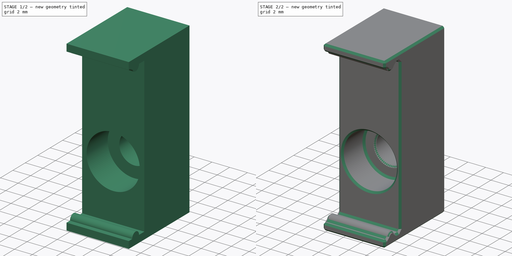
[diagram: build sequence overview — one tinted view per stage of 2, left to right]
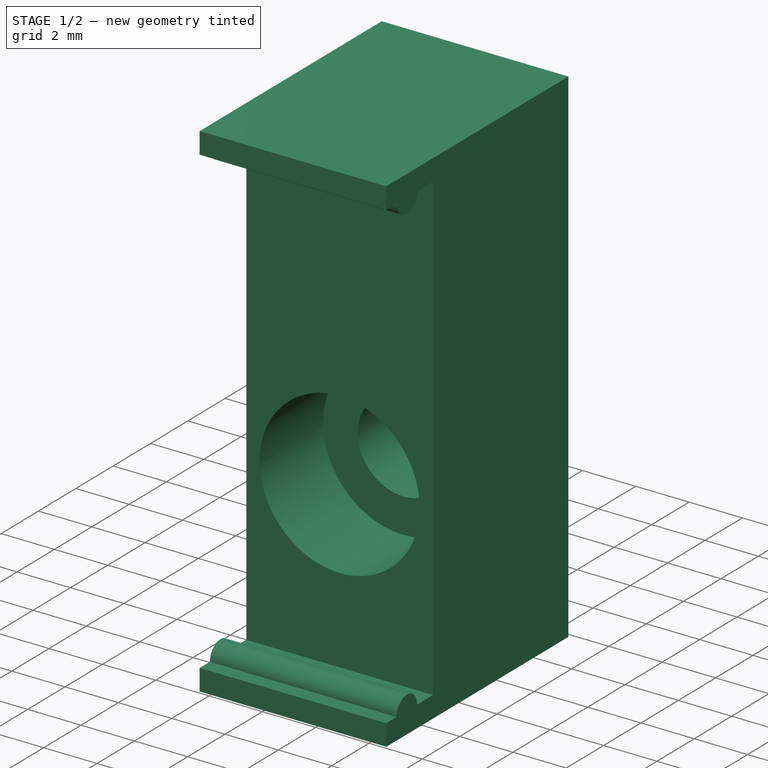
[diagram: stage 1 of 2 — iso view after this stage's code; geometry added in this stage tinted green]
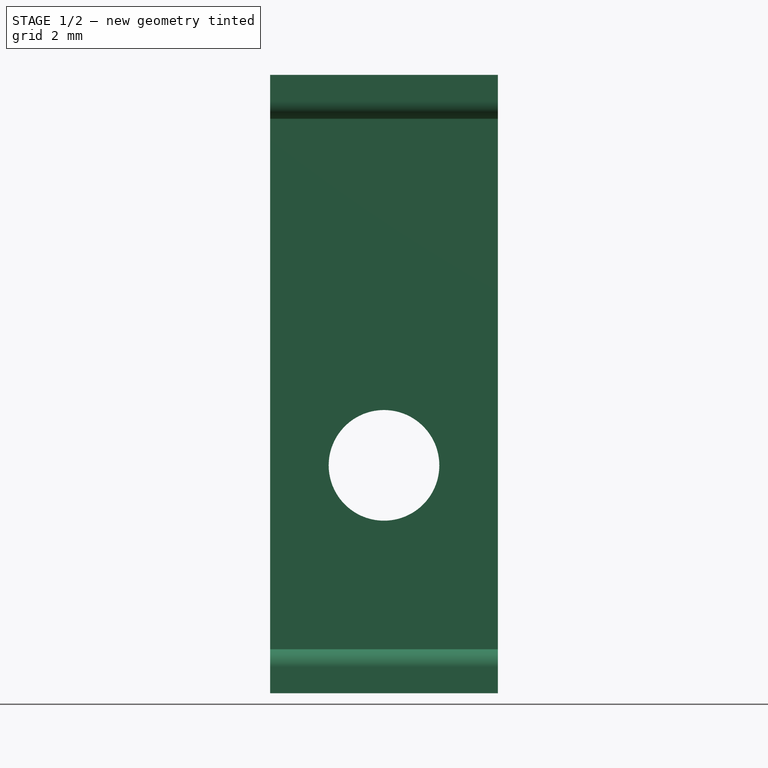
[diagram: stage 1 of 2 — front view after this stage's code; geometry added in this stage tinted green]
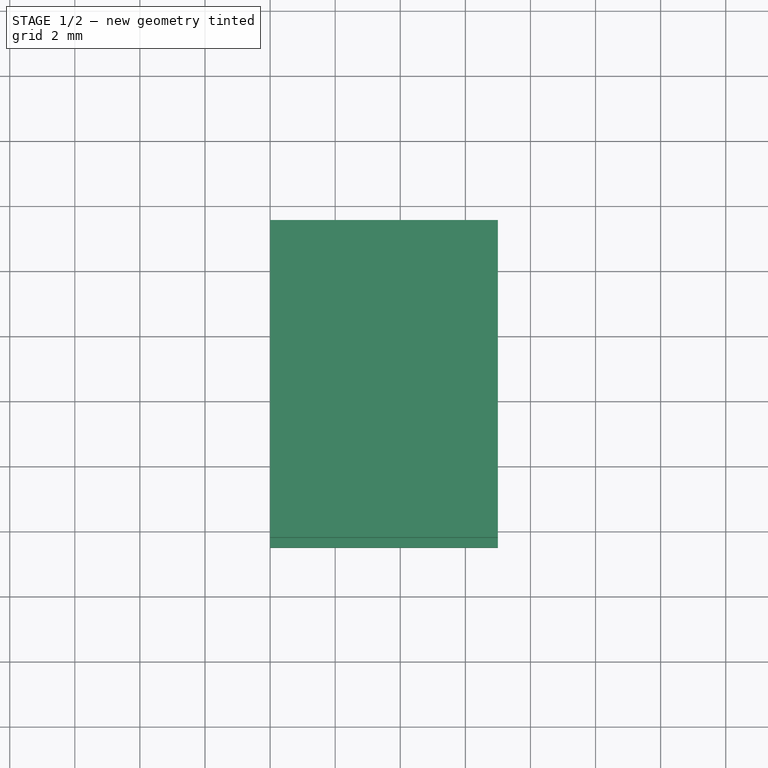
[diagram: stage 1 of 2 — top view after this stage's code; geometry added in this stage tinted green]
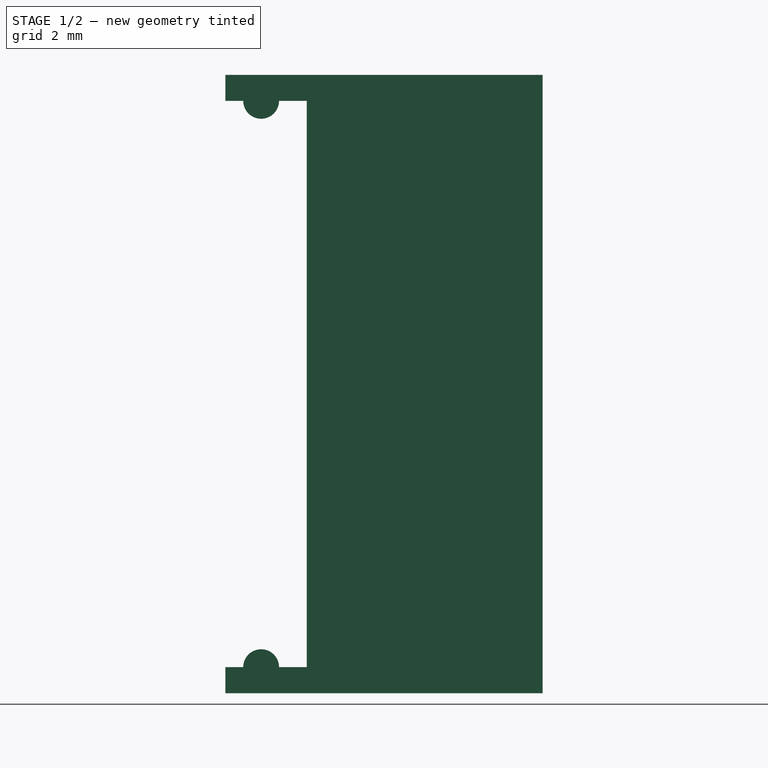
[diagram: stage 1 of 2 — right view after this stage's code; geometry added in this stage tinted green]
FCSTD DOCUMENT  (FreeCAD 0.21R33771 (Git))
Label: tradrack-led-profile-holder
License: All rights reserved
LicenseURL: http://en.wikipedia.org/wiki/All_rights_reserved
objects: Sketcher::SketchObject×2, PartDesign::Pad×1, PartDesign::Hole×1, PartDesign::Chamfer×1, PartDesign::Body×1
note: 9 computed .brp shape members not serialized (recipe doc carries the construction recipe); baked Part::Feature solids carry a one-line shape summary decoded from their .brp

FEATURE [Sketcher::SketchObject] Sketch
  FullyConstrained = true
  MapMode = 5
  Placement = pos=(0,0,0) rot=(0.57735,0.57735,0.57735;2.0944rad)
  Support = -> [YZ_Plane]
  sketch-geometry (18):
    g0: LineSegment StartX=0 StartY=17.4 StartZ=0 EndX=0 EndY=0 EndZ=0
    g1: LineSegment StartX=0 StartY=17.4 StartZ=0 EndX=-2.5 EndY=17.4 EndZ=0
    g2: LineSegment StartX=0 StartY=0 StartZ=0 EndX=-2.5 EndY=0 EndZ=0
    g3: LineSegment StartX=-0.85 StartY=17.4 StartZ=0 EndX=-0.85 EndY=0 EndZ=0
    g4: LineSegment StartX=-1.95 StartY=17.4 StartZ=0 EndX=-1.95 EndY=0 EndZ=0
    g5: LineSegment StartX=-2.5 StartY=0 StartZ=0 EndX=-2.5 EndY=-0.8 EndZ=0
    g6: LineSegment StartX=-2.5 StartY=18.2 StartZ=0 EndX=-2.5 EndY=17.4 EndZ=0
    g7: LineSegment StartX=-2.5 StartY=17.4 StartZ=0 EndX=-1.95 EndY=17.4 EndZ=0
    g8: ArcOfCircle CenterX=-1.4 CenterY=17.4 CenterZ=0 NormalX=0 NormalY=0 NormalZ=1 AngleXU=0 Radius=0.55 StartAngle=3.14159 EndAngle=6.28319
    g9: LineSegment StartX=-0.85 StartY=17.4 StartZ=0 EndX=0 EndY=17.4 EndZ=0
    g10: LineSegment StartX=0 StartY=17.4 StartZ=0 EndX=0 EndY=0 EndZ=0
    g11: LineSegment StartX=0 StartY=0 StartZ=0 EndX=-0.85 EndY=1e-16 EndZ=0
    g12: ArcOfCircle CenterX=-1.4 CenterY=1e-16 CenterZ=0 NormalX=0 NormalY=0 NormalZ=1 AngleXU=0 Radius=0.55 StartAngle=0 EndAngle=3.14159
    g13: LineSegment StartX=-1.95 StartY=0 StartZ=0 EndX=-2.5 EndY=0 EndZ=0
    g14: LineSegment StartX=-2.5 StartY=0 StartZ=0 EndX=-8.95 EndY=0 EndZ=0
    g15: LineSegment StartX=-2.5 StartY=18.2 StartZ=0 EndX=7.25 EndY=18.2 EndZ=0
    g16: LineSegment StartX=7.25 StartY=18.2 StartZ=0 EndX=7.25 EndY=-0.8 EndZ=0
    g17: LineSegment StartX=-2.5 StartY=-0.8 StartZ=0 EndX=7.25 EndY=-0.8 EndZ=0
  constraints (48):
    c: PointOnObject(g0,g-2)
    c: Coincident(g0,g-1)
    c: DistanceY(g0,g0) = 17.4
    c: Coincident(g1,g0)
    c: Horizontal(g1)
    c: Coincident(g2,g0)
    c: PointOnObject(g2,g-1)
    c: Vertical(g1,g2)
    c: PointOnObject(g3,g1)
    c: PointOnObject(g3,g2)
    c: Vertical(g3)
    c: PointOnObject(g4,g1)
    c: PointOnObject(g4,g2)
    c: Vertical(g4)
    c: DistanceX(g3,g0) = 0.85
    c: DistanceX(g4,g3) = 1.1
    c: Coincident(g2,g5)
    c: Vertical(g5)
    c: Coincident(g6,g1)
    c: Coincident(g6,g7)
    c: Coincident(g7,g4)
    c: Perpendicular(g7,g8) = 4.71239
    c: Coincident(g8,g3)
    c: Coincident(g8,g9)
    c: Coincident(g9,g0)
    c: Coincident(g9,g10)
    c: Coincident(g10,g0)
    c: Coincident(g10,g11)
    c: Coincident(g11,g3)
    c: Perpendicular(g11,g12) = 4.71239
    c: Coincident(g12,g4)
    c: Coincident(g12,g13)
    c: Coincident(g13,g5)
    c: Vertical(g6)
    c: DistanceY(g6,g6) = 0.8
    c: Equal(g5,g6)
    c: Coincident(g14,g5)
    c: PointOnObject(g14,g-1)
    c: DistanceX(g14,g12) = 7
    c: Coincident(g15,g6)
    c: Horizontal(g15)
    c: Vertical(g16)
    c: Coincident(g17,g5)
    c: Horizontal(g17)
    c: Coincident(g16,g17)
    c: Coincident(g15,g16)
    c: DistanceX(g9,g15) = 7.25
    c: DistanceX(g6,g9) = 2.5
FEATURE [PartDesign::Pad] Pad
  Direction = (1,-2e-16,3e-16)
  Length = 7
  Length2 = 10
  Placement = pos=(0,0,0) rot=(1,1,1;2.0944rad)
  Profile = -> Sketch
  ReferenceAxis = -> Sketch [N_Axis]
  Type = 0
FEATURE [Sketcher::SketchObject] Sketch001
  ExternalGeometry = -> [Pad]
  FullyConstrained = true
  MapMode = 5
  Placement = pos=(0,0,0) rot=(-0.57735,-0.57735,0.57735;4.18879rad)
  Support = -> [Pad]
  sketch-geometry (1):
    g0: Circle CenterX=-6.2 CenterY=3.5 CenterZ=0 NormalX=0 NormalY=0 NormalZ=1 AngleXU=0 Radius=1.5
  constraints (3):
    c: DistanceX(g-3,g0) = 12
    c: DistanceY(g-3,g0) = 3.5
    c: Diameter(g0) = 3
FEATURE [PartDesign::Hole] Hole
  BaseFeature = -> Pad
  CustomThreadClearance = 0
  Depth = 46.1305
  DepthType = 1
  Diameter = 3.4
  DrillForDepth = false
  DrillPoint = 1
  DrillPointAngle = 118
  HoleCutCountersinkAngle = 90
  HoleCutCustomValues = false
  HoleCutDepth = 3.4
  HoleCutDiameter = 6
  HoleCutType = 9
  ModelThread = false
  Placement = pos=(0,0,0) rot=(1,1,1;2.0944rad)
  Profile = -> Sketch001
  Tapered = false
  TaperedAngle = 90
  ThreadClass = 0
  ThreadDepth = 46.1305
  ThreadDepthType = 0
  ThreadDirection = 0
  ThreadFit = 0
  ThreadSize = 9
  ThreadType = 1
  Threaded = false
  UseCustomThreadClearance = false
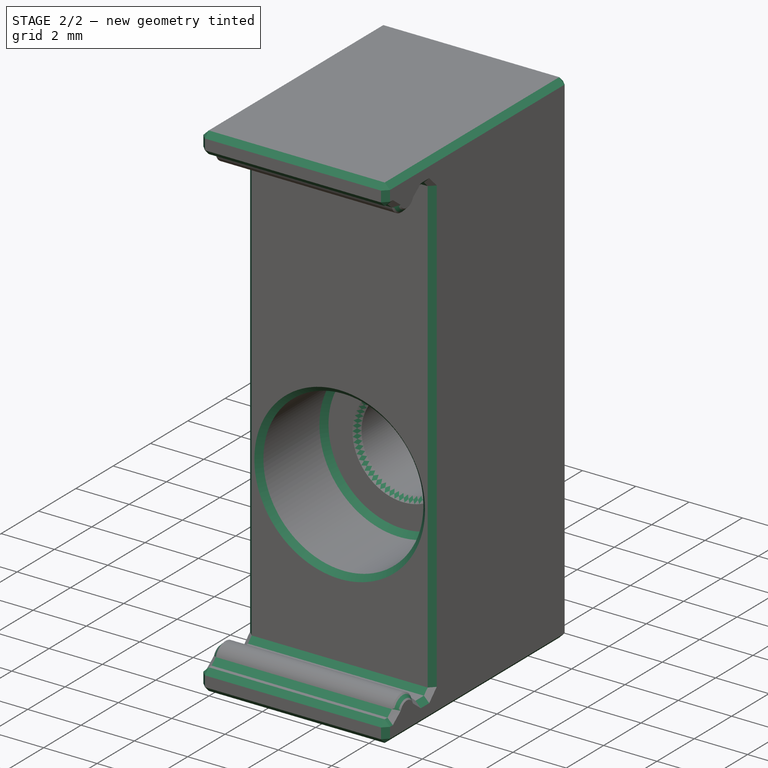
[diagram: stage 2 of 2 — iso view after this stage's code; geometry added in this stage tinted green]
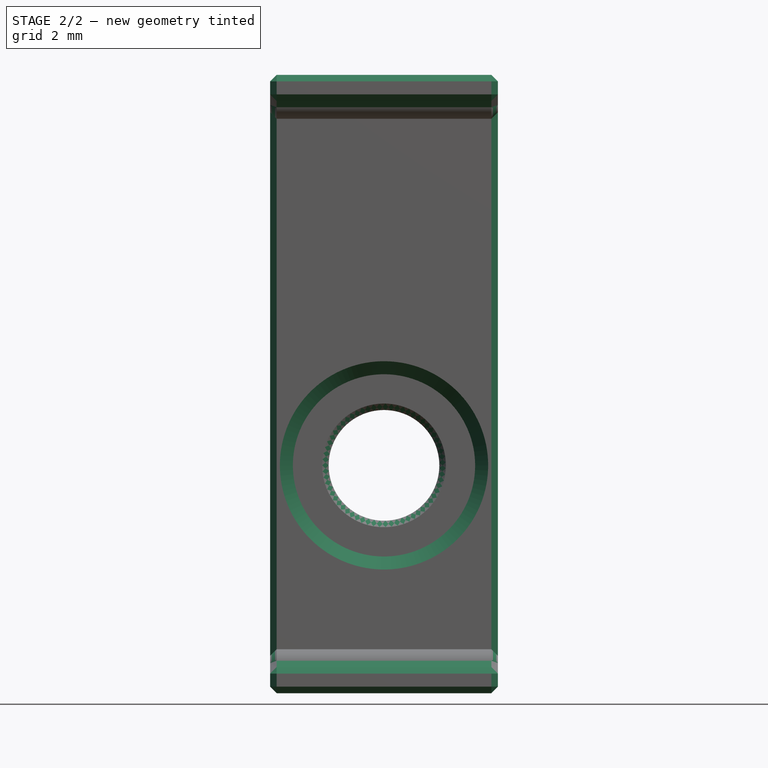
[diagram: stage 2 of 2 — front view after this stage's code; geometry added in this stage tinted green]
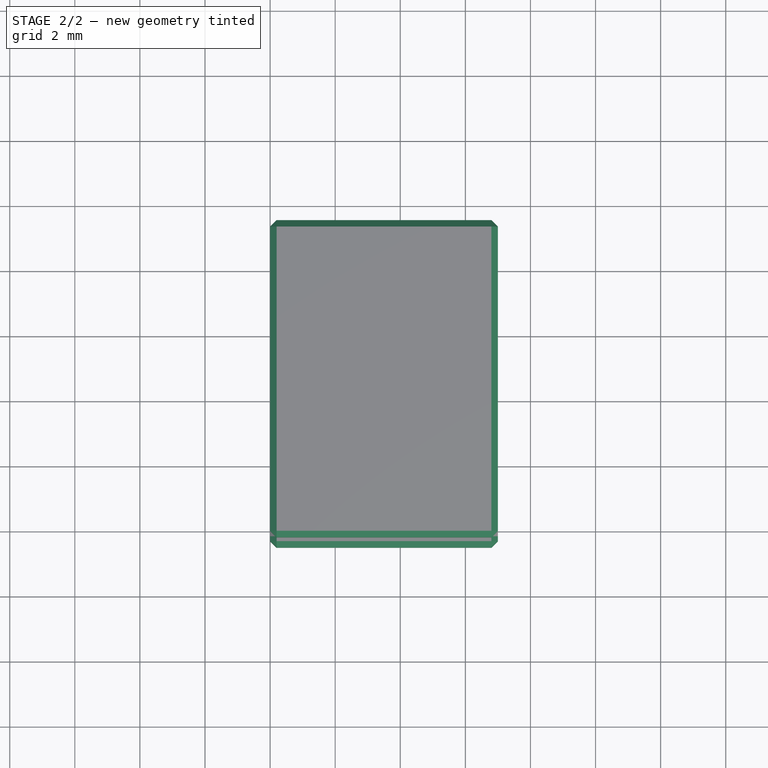
[diagram: stage 2 of 2 — top view after this stage's code; geometry added in this stage tinted green]
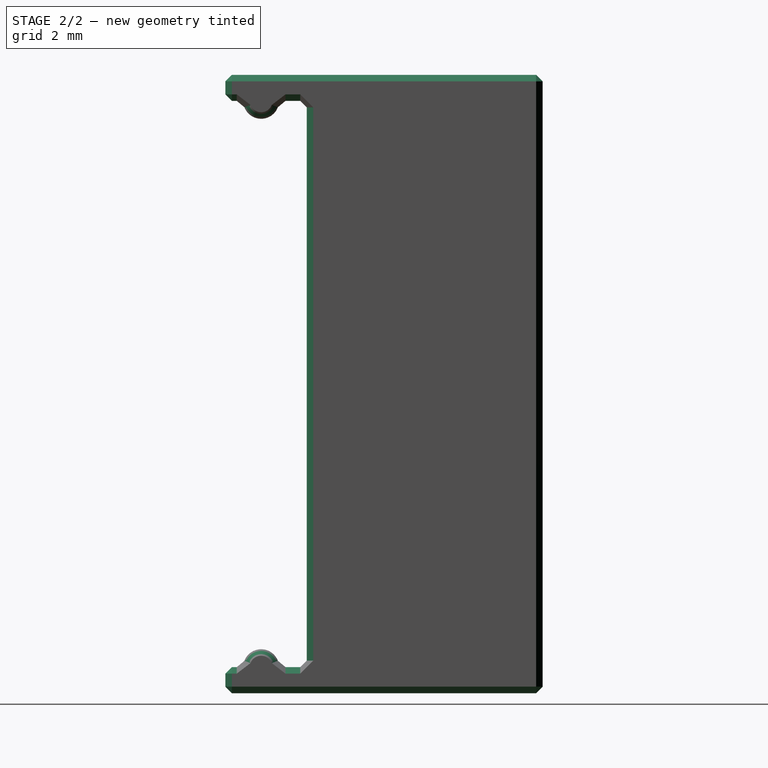
[diagram: stage 2 of 2 — right view after this stage's code; geometry added in this stage tinted green]
FEATURE [PartDesign::Chamfer] Chamfer
  Angle = 45
  Base = -> Hole
  BaseFeature = -> Hole
  ChamferType = 0
  FlipDirection = false
  Placement = pos=(0,0,0) rot=(1,1,1;2.0944rad)
  Size = 0.2
  Size2 = 1
  SupportTransform = false
  UseAllEdges = true
FEATURE [PartDesign::Body] Body  label="body"
  Group = -> [Sketch,Pad,Sketch001,Hole,Chamfer]
  Origin = -> Origin
  Tip = -> Chamfer
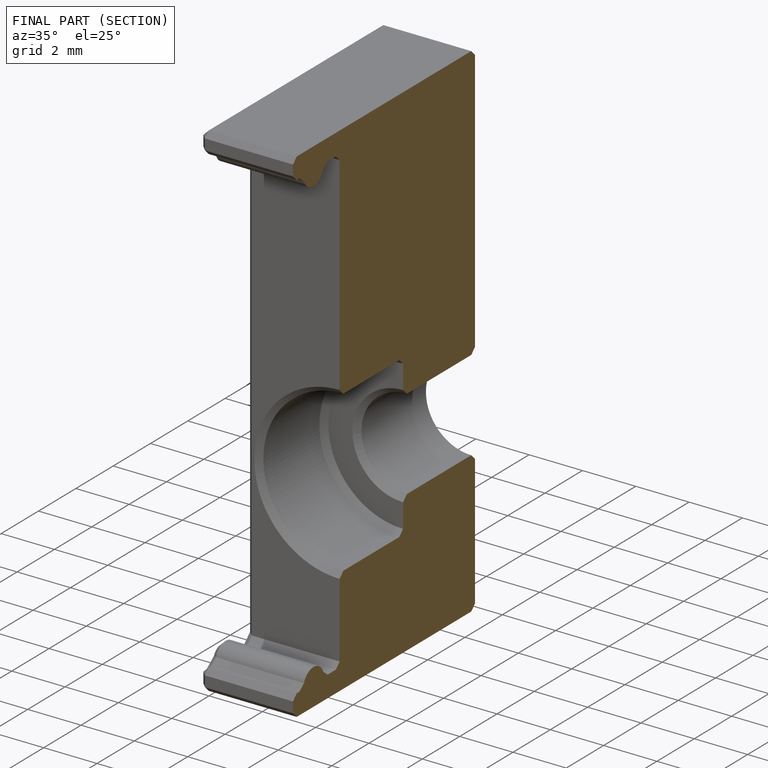
[diagram: finished part — half-section view (interior)]
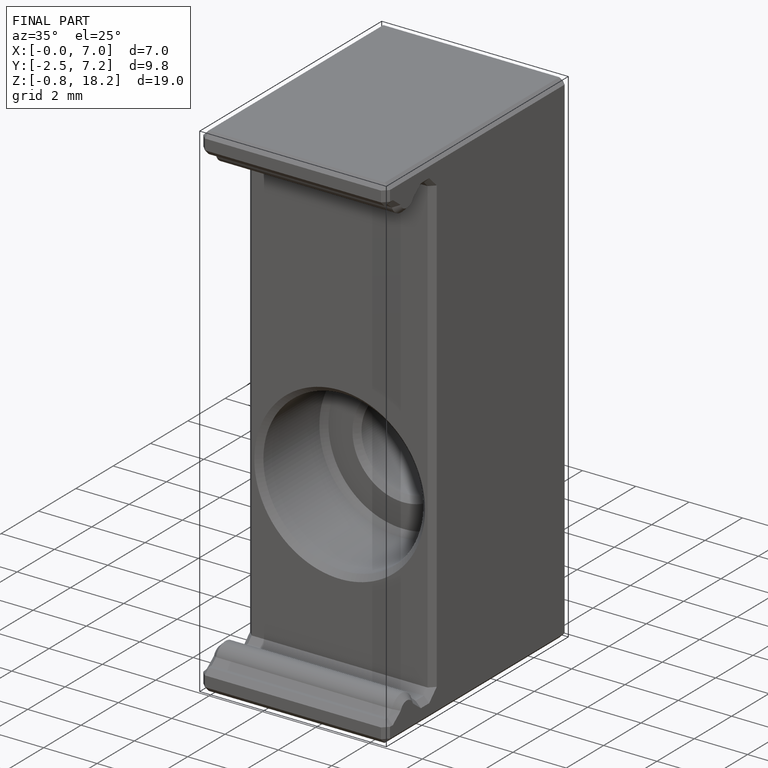
[diagram: finished part — iso view with bounding-box wireframe]
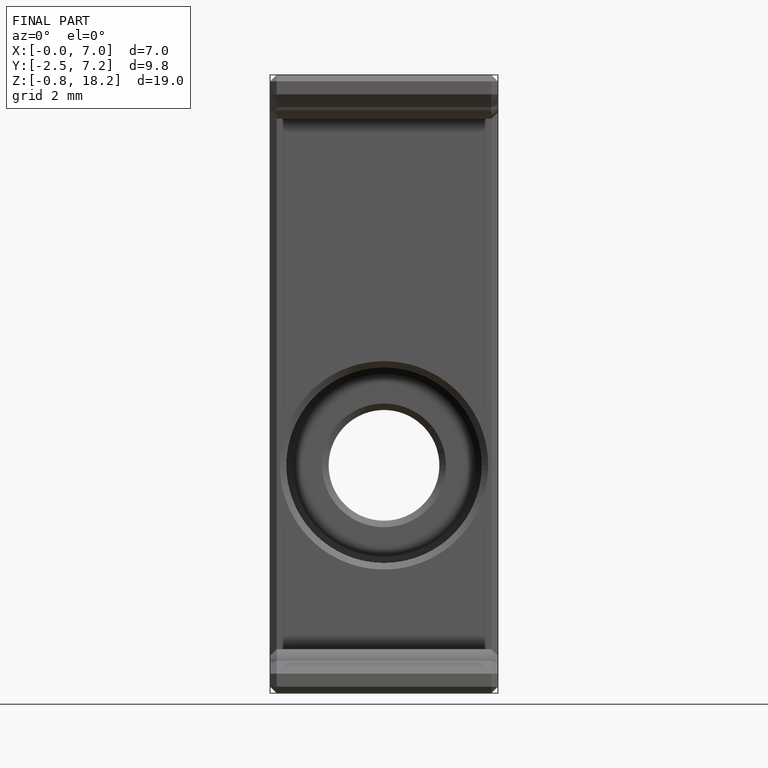
[diagram: finished part — front view with bounding-box wireframe]
